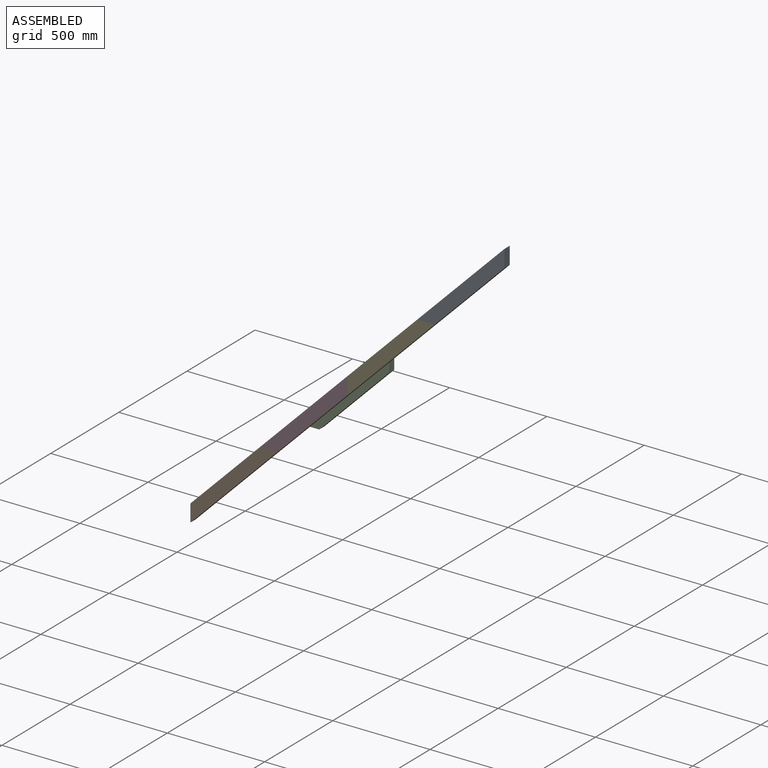
[diagram: assembled view]
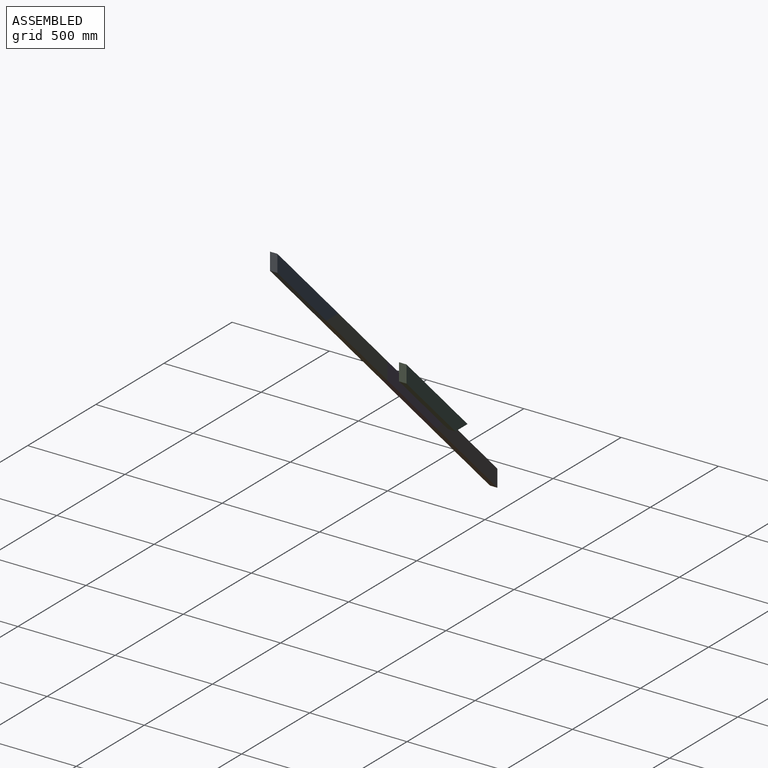
[diagram: assembled view, second angle]
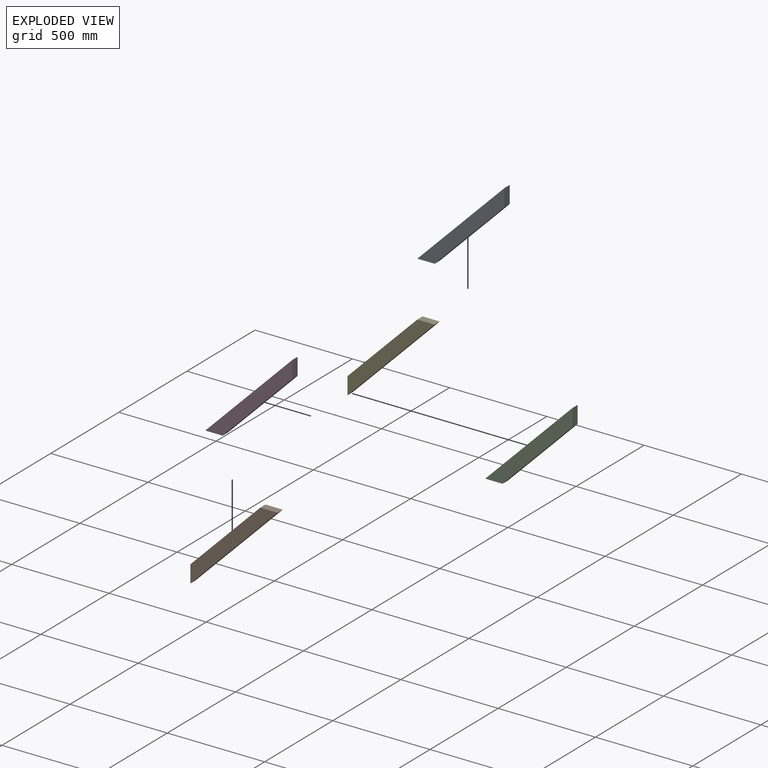
[diagram: exploded view]
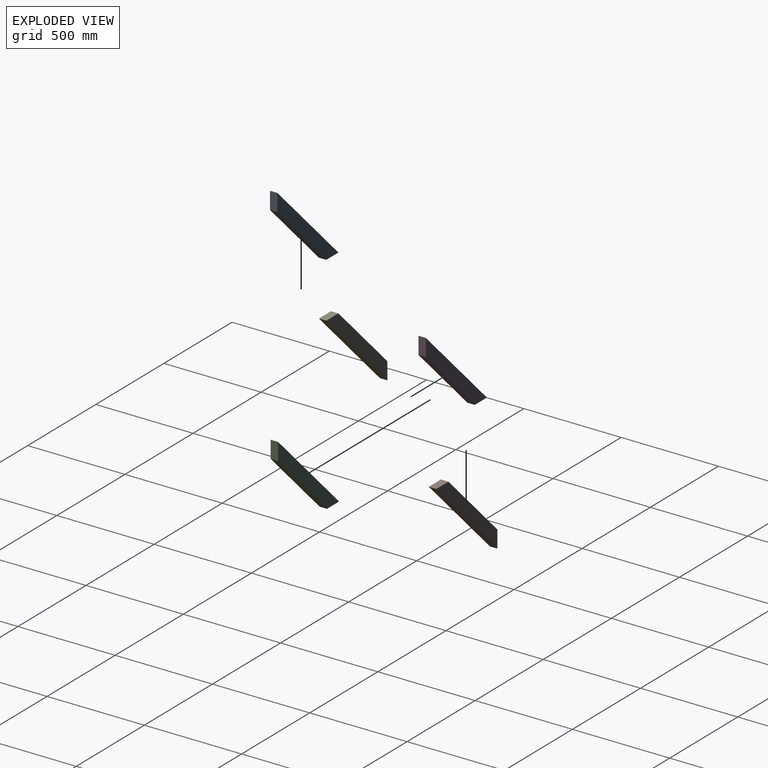
[diagram: exploded view, second angle]
ASSEMBLY  parts=5 mates=3
PART A: 6 faces, bbox 448.1x38.1x448.1 mm
  f0: plane 359.21x359.21mm, normal (0.71,0,-0.71), area 19354.8mm2, adj f1,f3,f4,f5
  f1: plane 88.9x38.1mm, normal (1,0,0), area 3387.1mm2, adj f0,f2,f4,f5
  f2: plane 448.11x448.11mm, normal (-0.71,0,0.71), area 24144.9mm2, adj f1,f3,f4,f5
  f3: plane 88.9x38.1mm, normal (0,0,-1), area 3387.1mm2, adj f0,f2,f4,f5
  f4: plane 448.11x448.11mm, normal (0,-1,0), area 35885.4mm2, adj f0,f1,f2,f3
  f5: plane 448.11x448.11mm, normal (0,1,0), area 35885.4mm2, adj f0,f1,f2,f3
PART B: same geometry as A
PART C: same geometry as A
PART D: same geometry as A
PART E: same geometry as A
PLACE A t=(709.98,-166.5,740.71)mm
PLACE B rot(axis=(0.71,0,0.71),180deg) t=(-780.79,1632.53,-190.48)mm
PLACE C at identity
PLACE D t=(-97.34,-166.5,-66.61)mm
PLACE E rot(axis=(0.71,0,0.71),180deg) t=(26.53,1632.53,616.84)mm
MATE fastened A.f3 <-> E.f1  axis (0,0,-1) through (479.49,733.01,790.02)mm
MATE fastened B.f1 <-> D.f3  axis (0,0,1) through (-327.83,733.01,-17.3)mm
MATE fastened E.f3 <-> D.f1  axis (-1,0,0) through (75.83,733.01,386.36)mm
